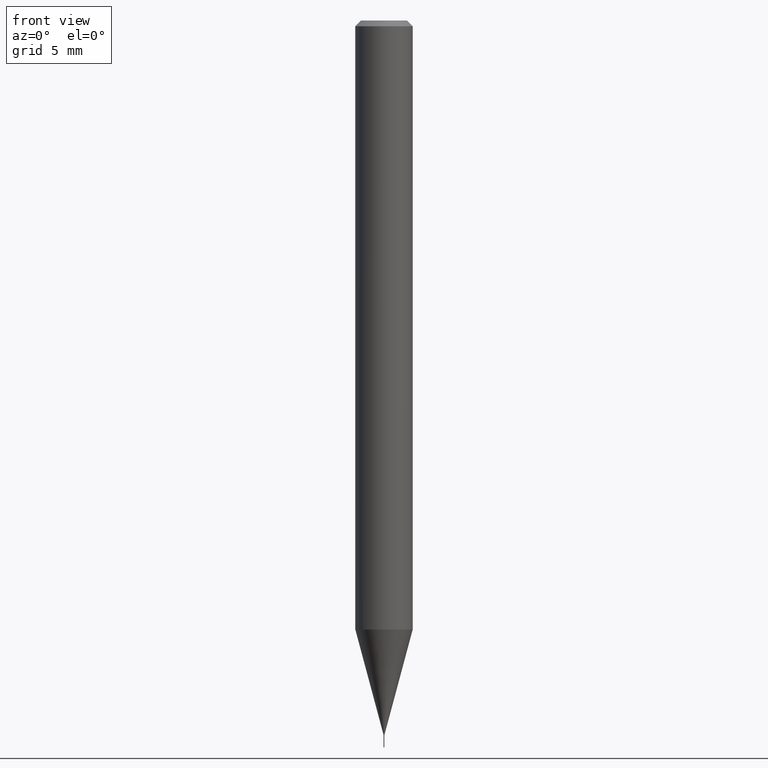
[diagram: clean part render]
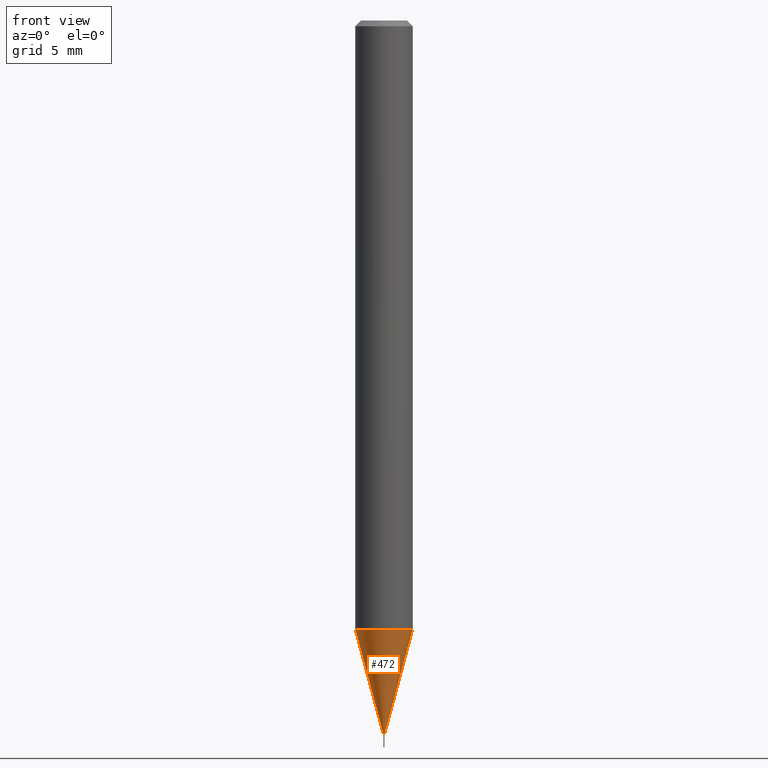
[diagram: same view with one face highlighted and labeled with its STEP entity id]
A machine part, front view. The second image highlights one B-rep face of the part: STEP entity #472.
In plain terms, the highlighted conical surface has half-angle 15 deg.
Its self-contained STEP definition (entity closure, byte-faithful):
#2 = CARTESIAN_POINT ( 'NONE',  ( -0.05905000000000014404, -3.955883447524345501E-15, -1.253181245539875643 ) ) ;
#16 = ORIENTED_EDGE ( 'NONE', *, *, #173, .T. ) ;
#19 = CARTESIAN_POINT ( 'NONE',  ( -0.0008999999999999999754, -5.126780979745350845E-15, -1.470199999999999729 ) ) ;
#20 = CARTESIAN_POINT ( 'NONE',  ( 3.064615644464002051E-29, -4.375458932990685782E-15, -1.253181245539875643 ) ) ;
#21 = VERTEX_POINT ( 'NONE', #2 ) ;
#58 = DIRECTION ( 'NONE',  ( -0.2588190451025281225, 5.211531920934590485E-15, 0.9659258262890662028 ) ) ;
#59 = DIRECTION ( 'NONE',  ( -2.445468806185136597E-29, 3.491481338843145583E-15, 1.000000000000000000 ) ) ;
#66 = DIRECTION ( 'NONE',  ( 1.000000000000000000, -6.982962677686656408E-15, 0.000000000000000000 ) ) ;
#71 = CARTESIAN_POINT ( 'NONE',  ( 0.05905000000000014404, -4.787802879108061491E-15, -1.253181245539875643 ) ) ;
#109 = CIRCLE ( 'NONE', #343, 0.05905000000000015098 ) ;
#130 = DIRECTION ( 'NONE',  ( -2.445468806185136597E-29, 3.491481338843145583E-15, 1.000000000000000000 ) ) ;
#143 = AXIS2_PLACEMENT_3D ( 'NONE', #392, #130, #359 ) ;
#150 = CARTESIAN_POINT ( 'NONE',  ( 0.0008999999999999999754, -5.139460530777110033E-15, -1.470199999999999729 ) ) ;
#157 = CARTESIAN_POINT ( 'NONE',  ( -0.0008999999999999999754, -5.126431831611467333E-15, -1.470199999999999729 ) ) ;
#164 = EDGE_LOOP ( 'NONE', ( #282, #16, #471, #459 ) ) ;
#173 = EDGE_CURVE ( 'NONE', #236, #313, #196, .T. ) ;
#178 = CONICAL_SURFACE ( 'NONE', #326, 0.0008999999999999999754, 0.2617993877991570684 ) ;
#188 = VERTEX_POINT ( 'NONE', #71 ) ;
#196 = CIRCLE ( 'NONE', #143, 0.0008999999999999999754 ) ;
#212 = EDGE_CURVE ( 'NONE', #236, #21, #490, .T. ) ;
#236 = VERTEX_POINT ( 'NONE', #157 ) ;
#263 = CARTESIAN_POINT ( 'NONE',  ( 0.0008999999999999999754, -5.139460530777110033E-15, -1.470199999999999729 ) ) ;
#281 = FACE_OUTER_BOUND ( 'NONE', #164, .T. ) ;
#282 = ORIENTED_EDGE ( 'NONE', *, *, #212, .F. ) ;
#302 = LINE ( 'NONE', #150, #385 ) ;
#311 = EDGE_CURVE ( 'NONE', #313, #188, #302, .T. ) ;
#313 = VERTEX_POINT ( 'NONE', #263 ) ;
#315 = VECTOR ( 'NONE', #58, 39.37007874015748854 ) ;
#326 = AXIS2_PLACEMENT_3D ( 'NONE', #438, #59, #66 ) ;
#343 = AXIS2_PLACEMENT_3D ( 'NONE', #20, #395, #476 ) ;
#359 = DIRECTION ( 'NONE',  ( 1.000000000000000000, -6.982962677686656408E-15, 0.000000000000000000 ) ) ;
#385 = VECTOR ( 'NONE', #454, 39.37007874015748854 ) ;
#392 = CARTESIAN_POINT ( 'NONE',  ( 3.595328238853387268E-29, -5.133175864367191831E-15, -1.470199999999999729 ) ) ;
#395 = DIRECTION ( 'NONE',  ( -2.445468806185136597E-29, 3.491481338843145583E-15, 1.000000000000000000 ) ) ;
#438 = CARTESIAN_POINT ( 'NONE',  ( 3.595328238853387268E-29, -5.133175864367191831E-15, -1.470199999999999729 ) ) ;
#448 = EDGE_CURVE ( 'NONE', #21, #188, #109, .T. ) ;
#454 = DIRECTION ( 'NONE',  ( 0.2588190451025281225, 1.565188264969568128E-15, 0.9659258262890662028 ) ) ;
#459 = ORIENTED_EDGE ( 'NONE', *, *, #448, .F. ) ;
#471 = ORIENTED_EDGE ( 'NONE', *, *, #311, .T. ) ;
#472 = ADVANCED_FACE ( 'NONE', ( #281 ), #178, .T. ) ;
#476 = DIRECTION ( 'NONE',  ( 1.000000000000000000, -6.982962677686271444E-15, 0.000000000000000000 ) ) ;
#490 = LINE ( 'NONE', #19, #315 ) ;